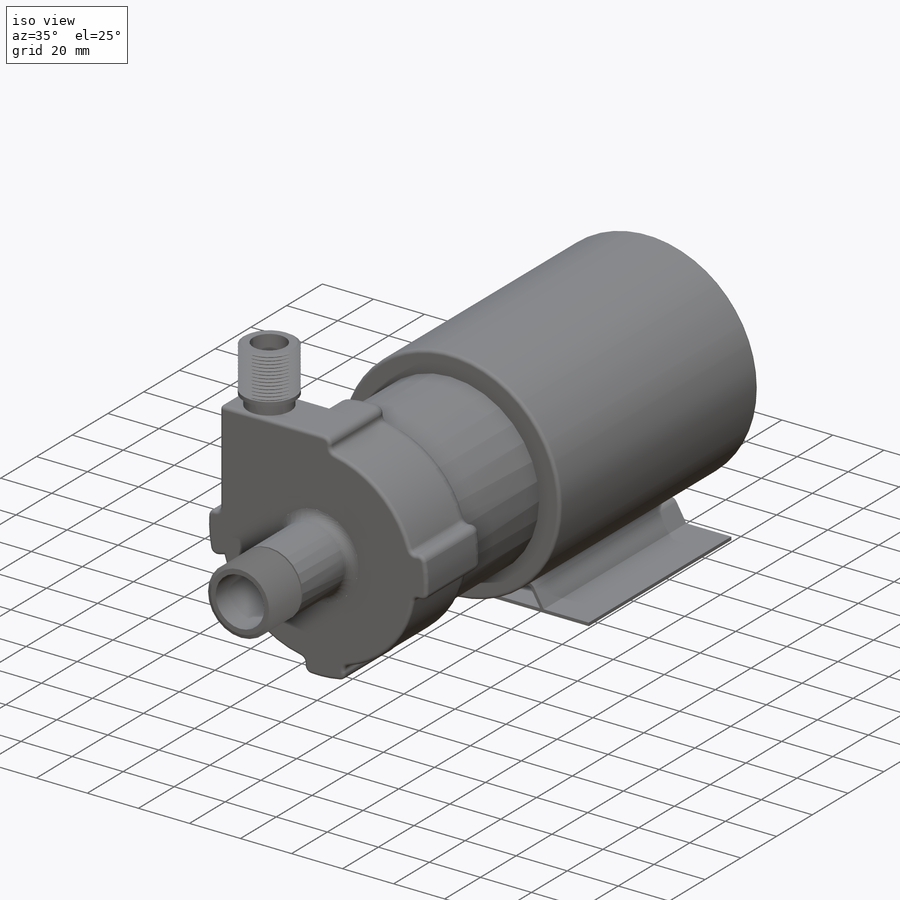
[diagram: iso view]
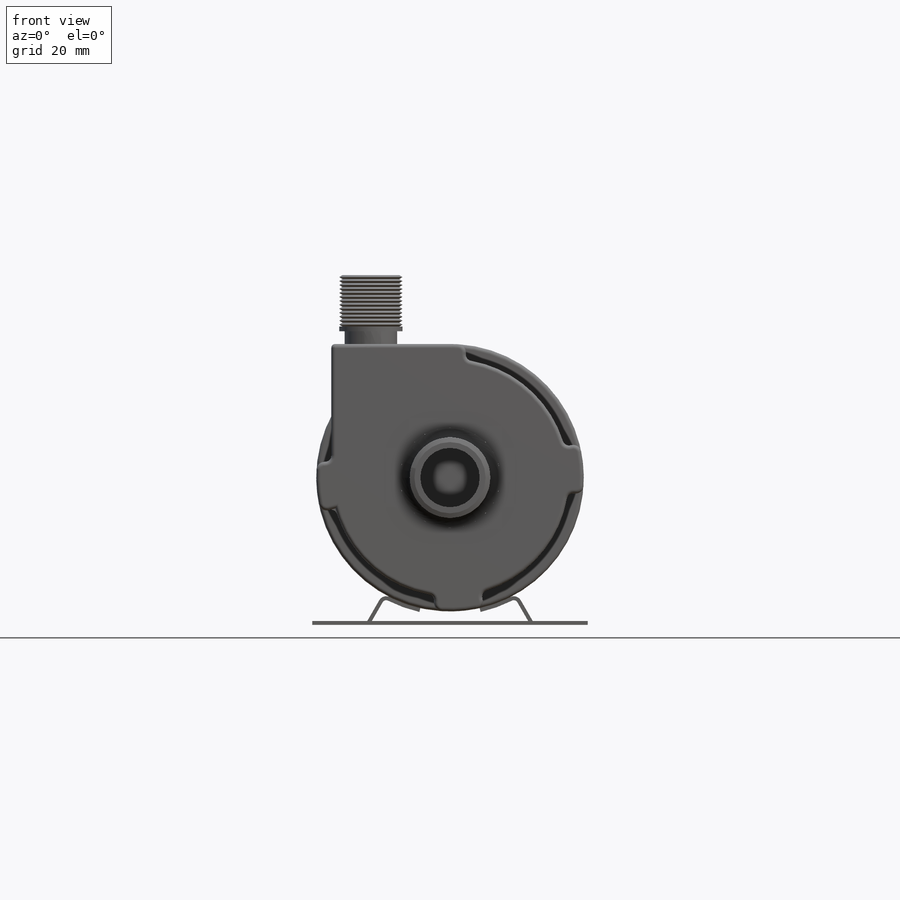
[diagram: front view]
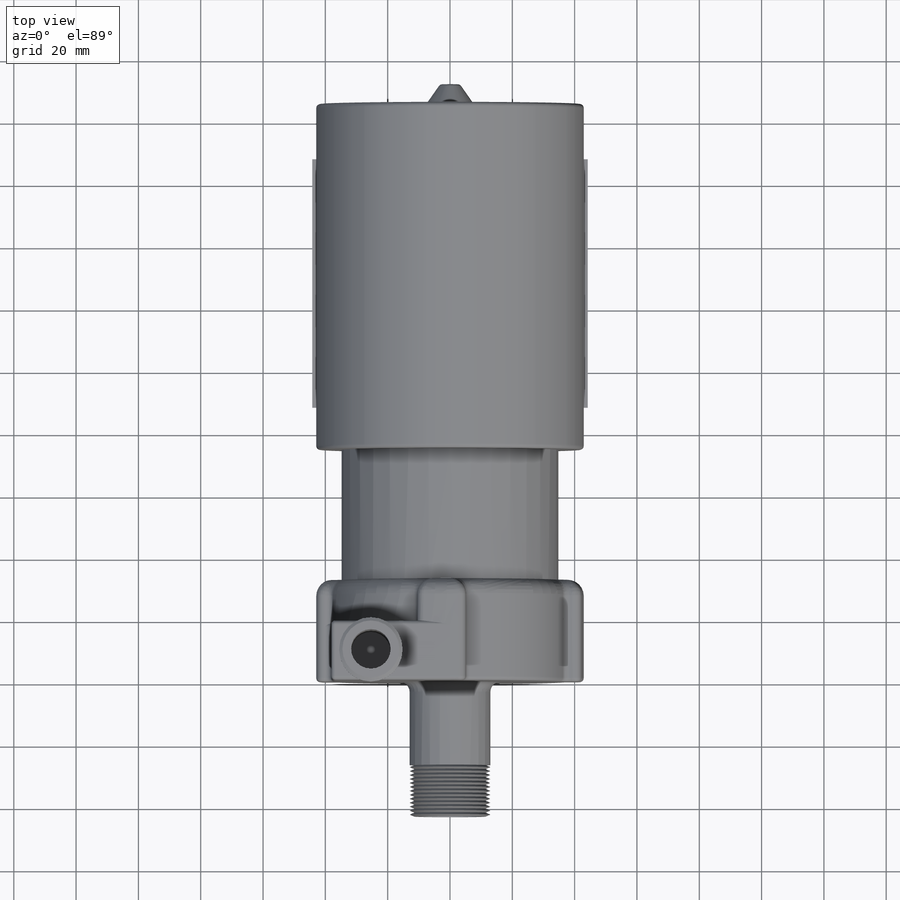
[diagram: top view]
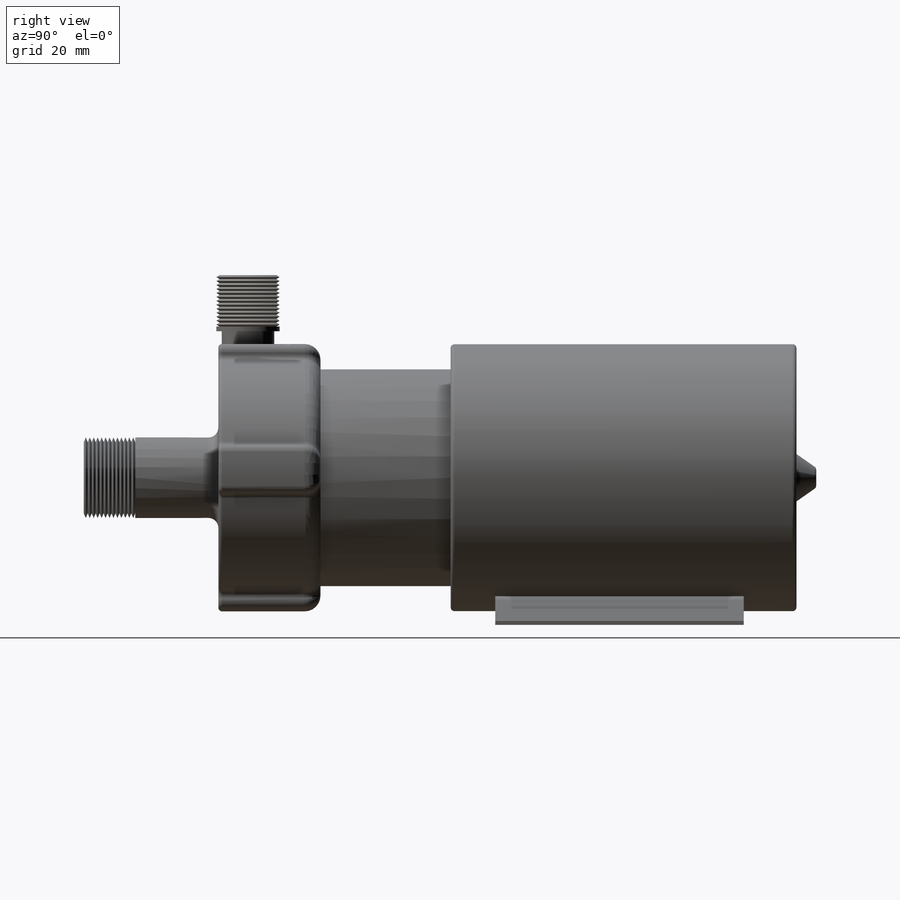
[diagram: right view]
SOLIDWORKS PART (.sldprt)
format: sldprt  version: not decoded by parser v0  size: 835,072 bytes
history: native  units: mm
features: sketch x12, extrude x6, fillet x4, cut_revolve x3, plane x2, cut_extrude x2, material x1, revolve x1 (+12 scaffold rows collapsed)
feature tree (43):
  scaffold x12  (default folders/planes/origin — collapsed)
  material  "Material <not specified>"
  sketch  "Sketch1"  dims[c1.D1=85.852mm c1.D2=76.2mm c1.D5=2.54mm c1.D7=2.032mm c1.D3=~4.870163mm c2.D3=15.0deg c2.D4=5.08mm c2.D6=4.0]
  extrude  "Boss-Extrude1"  Depth=19.05mm
  sketch  "Sketch3"  dims[D2=20.32mm D1=25.4mm]
  extrude  "Boss-Extrude2"  Depth=22.098mm
  plane  "Plane1"  Offset=9.525mm
  sketch  "Sketch4"  dims[D1=1.27mm D2=16.51mm D4=1.524mm D3=13.0]
  cut_revolve  "Cut-Revolve1"  Angle=360deg
  sketch  "Sketch5"  dims[D1=12.7mm]
  cut_extrude  "Cut-Extrude1"  Depth=50.8mm
  sketch  "Sketch6"  dims[D1=25.908mm]
  extrude  "Boss-Extrude3"  Depth=43.18mm
  sketch  "Sketch7"  dims[c1.D1=1.27mm c1.D2=1.524mm c1.D3=1.524mm c2.D3=13.0]
  cut_revolve  "Cut-Revolve2"  Angle=360deg
  sketch  "Sketch8"  dims[D1=19.05mm]
  cut_extrude  "Cut-Extrude2"  Depth=50.8mm
  fillet  "Fillet1"  Radius=3.175mm
  sketch  "Sketch9"  dims[D1=76.2mm D2=85.852mm D3=66.548mm D4=2.54mm D6=2.032mm D5=4.0]
  extrude  "Boss-Extrude4"  Depth=55.499mm
  sketch  "Sketch10"
  cut_revolve  "Cut-Revolve3"  Angle=360deg
  fillet  "Fillet2"  Radius=5.08mm
  fillet  "Fillet3"  Radius=1.27mm
  sketch  "Sketch11"  dims[D1=85.852mm]
  extrude  "Boss-Extrude5"  Depth=110.998mm
  sketch  "Sketch12"  dims[D1=6.35mm D2=7.62mm D3=3.175mm]
  revolve  "Revolve2"  Angle=360deg
  fillet  "Fillet4"  Radius=1.27mm
  plane  "Plane2"  Offset=88.9mm
  sketch  "Sketch13"  dims[c1.D6=2.54mm c1.D1=112.268mm c1.D2=88.392mm c1.D4=~9.044881mm c2.D4=60.0deg c2.D5=9.525mm c3.D4=~6.664491mm c4.D4=60.0deg c4.D3=0.8255mm c4.D7=1.27mm c5.D3=1.27mm]
  extrude  "Boss-Extrude6"  Depth=79.756mm
decode coverage: 27 of 28 modeling features carry decoded parameters
note: ~ marks probable driven/reference dimensions
note: suppression state not decoded; provenance and decode notes live in map.json
